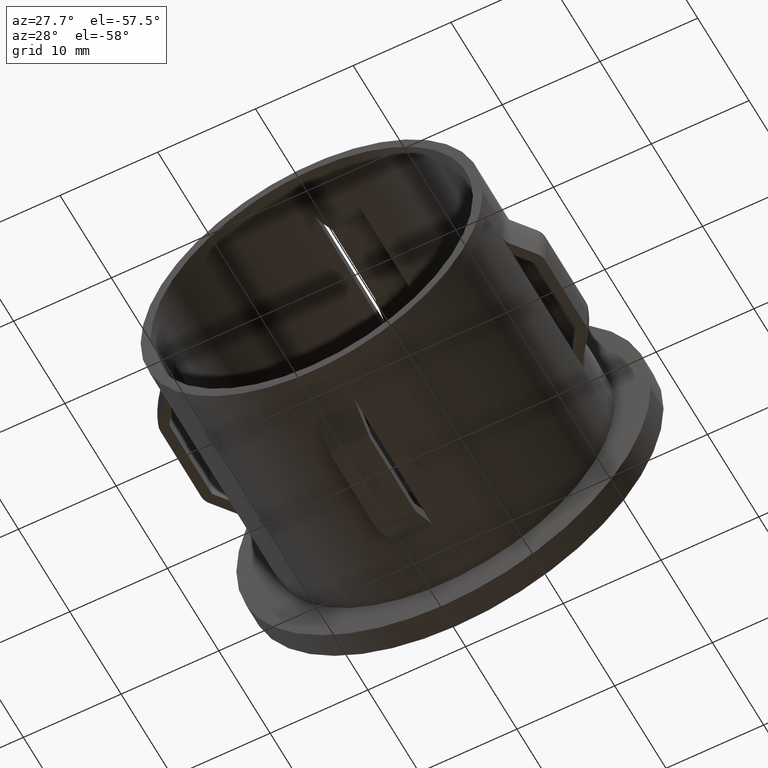
[diagram: clean part render]
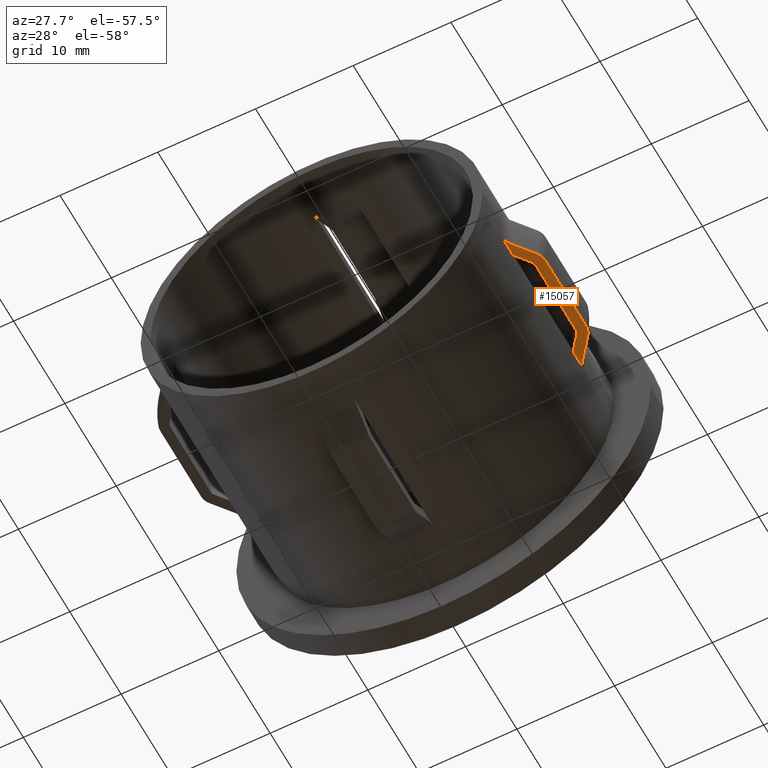
[diagram: same view with one face highlighted and labeled with its STEP entity id]
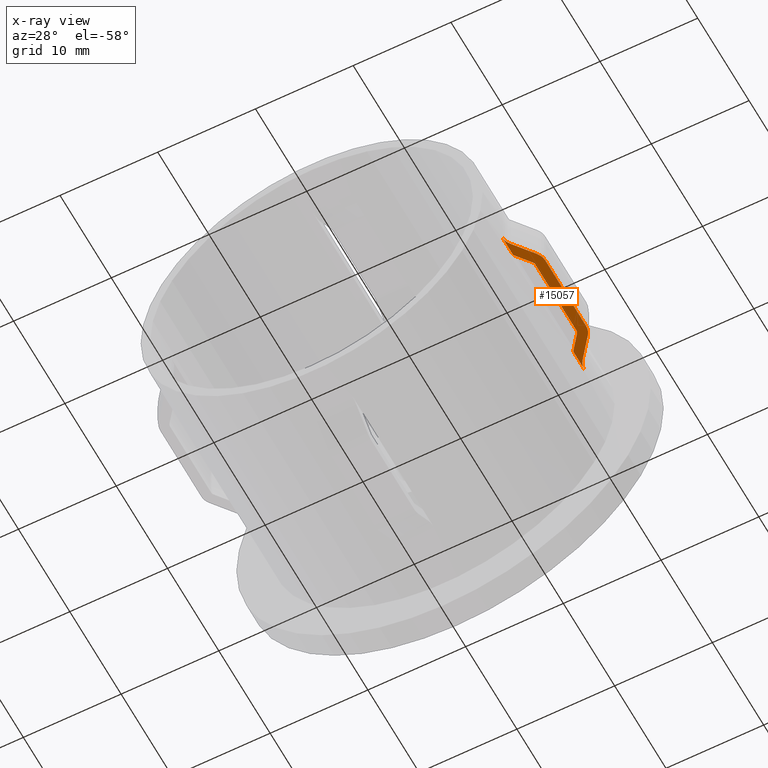
[diagram: x-ray of the same camera — body ghosted, the highlighted face saturated]
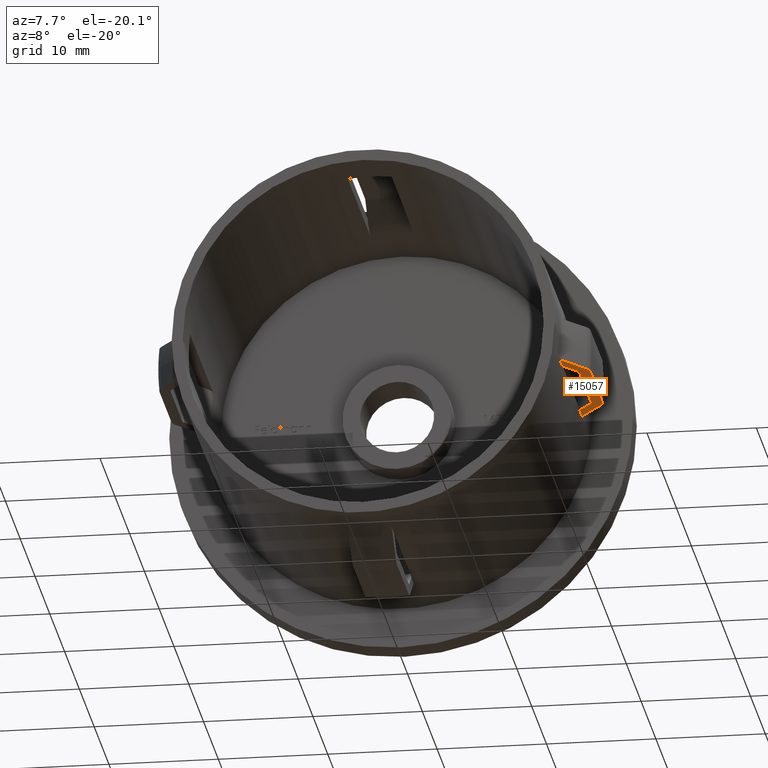
[diagram: same view with one face highlighted and labeled with its STEP entity id]
A machine part, auxiliary view. The second image highlights one B-rep face of the part: STEP entity #15057.
The next image is the same camera in x-ray: the body ghosted, the highlighted face saturated — about 0% of this face is hidden behind the body in this view.
A second angle (auxiliary view) of the same face is appended — the face is thin or edge-on in the first view.
In plain terms, the highlighted planar face has unit normal (-0, 0, -1).
Its self-contained STEP definition (entity closure, byte-faithful):
#112 = CARTESIAN_POINT ( 'NONE',  ( 19.25638913031340800, 17.08142934826649300, -2.000000000000000000 ) ) ;
#343 = CARTESIAN_POINT ( 'NONE',  ( 18.69331431287667700, 28.20000000000000300, -2.000000000000000000 ) ) ;
#440 = VECTOR ( 'NONE', #10838, 1000.000000000000000 ) ;
#556 = CARTESIAN_POINT ( 'NONE',  ( 17.38533865071371700, 20.00000000000000000, -2.000000000000000000 ) ) ;
#600 = CARTESIAN_POINT ( 'NONE',  ( 17.45777055170323800, 6.240436341341647300, -2.000000000000000000 ) ) ;
#666 = CARTESIAN_POINT ( 'NONE',  ( 18.62187473698392600, 7.737391989254852800, -2.000000000000000000 ) ) ;
#781 = CARTESIAN_POINT ( 'NONE',  ( 18.68406974042059300, 7.890042809425778200, -2.000000000000000000 ) ) ;
#863 = EDGE_CURVE ( 'NONE', #6844, #5928, #10163, .T. ) ;
#1088 = CARTESIAN_POINT ( 'NONE',  ( 19.69873092358997000, 15.99999999999999300, -2.000000000000000000 ) ) ;
#1095 = ORIENTED_EDGE ( 'NONE', *, *, #8516, .T. ) ;
#1288 = CARTESIAN_POINT ( 'NONE',  ( 17.41312422527077400, 4.330426929734375800, -2.000000000000000000 ) ) ;
#1383 = CARTESIAN_POINT ( 'NONE',  ( 19.38391828307801000, 7.082694103002714000, -2.000000000000000000 ) ) ;
#1471 = CARTESIAN_POINT ( 'NONE',  ( 19.69873092358998100, 7.836407959827564400, -2.000000000000000000 ) ) ;
#1497 = CARTESIAN_POINT ( 'NONE',  ( 17.41231722263728100, 19.67272579949924700, -2.000000000000000000 ) ) ;
#1621 = CARTESIAN_POINT ( 'NONE',  ( 19.38391828307801000, 7.082694103002714000, -2.000000000000000000 ) ) ;
#1732 = ORIENTED_EDGE ( 'NONE', *, *, #12738, .T. ) ;
#1765 = ORIENTED_EDGE ( 'NONE', *, *, #2864, .T. ) ;
#1950 = CARTESIAN_POINT ( 'NONE',  ( 18.69331431287668400, 16.00000000000000000, -2.000000000000000000 ) ) ;
#2010 = EDGE_CURVE ( 'NONE', #13743, #10760, #15531, .T. ) ;
#2065 = CARTESIAN_POINT ( 'NONE',  ( 18.58832299002213500, 16.30576863233242700, -2.000000000000000000 ) ) ;
#2515 = CARTESIAN_POINT ( 'NONE',  ( 17.70510967552677100, 17.44161250498658300, -2.000000000000000000 ) ) ;
#2566 = VERTEX_POINT ( 'NONE', #3169 ) ;
#2641 = CARTESIAN_POINT ( 'NONE',  ( 19.69873092358997000, 7.999999999999992900, -2.000000000000000000 ) ) ;
#2652 = CARTESIAN_POINT ( 'NONE',  ( 17.81191609988131600, 5.060495202477128800, -2.000000000000000000 ) ) ;
#2683 = VERTEX_POINT ( 'NONE', #13920 ) ;
#2864 = EDGE_CURVE ( 'NONE', #10760, #11992, #15368, .T. ) ;
#2972 = AXIS2_PLACEMENT_3D ( 'NONE', #8699, #13802, #4756 ) ;
#3118 = DIRECTION ( 'NONE',  ( -1.714505518806297100E-016, 1.000000000000000000, -0.0000000000000000000 ) ) ;
#3169 = CARTESIAN_POINT ( 'NONE',  ( 17.70054402987661700, 19.08269410300271600, -2.000000000000000000 ) ) ;
#3296 = CARTESIAN_POINT ( 'NONE',  ( 18.69331431287668400, 16.05532894865937300, -2.000000000000000000 ) ) ;
#3401 = EDGE_CURVE ( 'NONE', #15964, #3508, #9038, .T. ) ;
#3508 = VERTEX_POINT ( 'NONE', #11860 ) ;
#3619 = EDGE_CURVE ( 'NONE', #5928, #15964, #3784, .T. ) ;
#3693 = CARTESIAN_POINT ( 'NONE',  ( 18.58832299003000100, 7.694231367662705000, -2.000000000000000000 ) ) ;
#3705 = CARTESIAN_POINT ( 'NONE',  ( 17.38533865071371700, 17.85266306708251300, -2.000000000000000000 ) ) ;
#3784 = B_SPLINE_CURVE_WITH_KNOTS ( 'NONE', 3,
 ( #7198, #666, #8426, #781, #4656, #13646 ),
 .UNSPECIFIED., .F., .F.,
 ( 4, 2, 4 ),
 ( 0.001121410949493415300, 0.001285245636187003600, 0.001449080322880592200 ),
 .UNSPECIFIED. ) ;
#3794 = LINE ( 'NONE', #556, #9566 ) ;
#3836 = CARTESIAN_POINT ( 'NONE',  ( 19.69873092358997000, 15.99999999999999300, -2.000000000000000000 ) ) ;
#3848 = CARTESIAN_POINT ( 'NONE',  ( 17.70054402987662100, 4.917305896997282500, -2.000000000000000000 ) ) ;
#3871 = CARTESIAN_POINT ( 'NONE',  ( 17.70054402987661700, 19.08269410300271600, -2.000000000000000000 ) ) ;
#3872 = ORIENTED_EDGE ( 'NONE', *, *, #2010, .T. ) ;
#3915 = CARTESIAN_POINT ( 'NONE',  ( 17.51988713048691100, 19.35924031837562300, -2.000000000000000000 ) ) ;
#4164 = CARTESIAN_POINT ( 'NONE',  ( 18.58832299002213500, 16.30576863233242700, -2.000000000000000000 ) ) ;
#4290 = ORIENTED_EDGE ( 'NONE', *, *, #5590, .T. ) ;
#4656 = CARTESIAN_POINT ( 'NONE',  ( 18.69331431287669100, 7.945360792341523900, -2.000000000000000000 ) ) ;
#4756 = DIRECTION ( 'NONE',  ( -1.000000000000000000, 0.0000000000000000000, 9.801400357268895000E-017 ) ) ;
#4959 = CARTESIAN_POINT ( 'NONE',  ( 18.34724002446394700, 16.61589527519828700, -2.000000000000000000 ) ) ;
#5177 = CARTESIAN_POINT ( 'NONE',  ( 17.38533865071371700, 3.999999999999993300, -2.000000000000000000 ) ) ;
#5189 = CARTESIAN_POINT ( 'NONE',  ( 17.38533865071371700, 6.147336932917483000, -2.000000000000000000 ) ) ;
#5211 = CARTESIAN_POINT ( 'NONE',  ( 18.33608184474374500, 5.734433190431955700, -2.000000000000000000 ) ) ;
#5231 = CARTESIAN_POINT ( 'NONE',  ( 18.19805515410471100, 18.44307714435867500, -2.000000000000000000 ) ) ;
#5347 = CARTESIAN_POINT ( 'NONE',  ( 19.48510390493481700, 7.212918170659224700, -2.000000000000000000 ) ) ;
#5405 = CARTESIAN_POINT ( 'NONE',  ( 19.38391828307801000, 7.082694103002714000, -2.000000000000000000 ) ) ;
#5580 = VECTOR ( 'NONE', #3118, 1000.000000000000000 ) ;
#5590 = EDGE_CURVE ( 'NONE', #14900, #2683, #9707, .T. ) ;
#5773 = EDGE_CURVE ( 'NONE', #9895, #2683, #3794, .T. ) ;
#5928 = VERTEX_POINT ( 'NONE', #3693 ) ;
#5948 = EDGE_CURVE ( 'NONE', #9895, #2566, #8169, .T. ) ;
#6135 = DIRECTION ( 'NONE',  ( -0.0000000000000000000, -1.000000000000000000, -0.0000000000000000000 ) ) ;
#6148 = CARTESIAN_POINT ( 'NONE',  ( 18.10612365518475600, 16.92599595467671500, -2.000000000000000000 ) ) ;
#6234 = CARTESIAN_POINT ( 'NONE',  ( 19.38391828307859700, 16.91730589699767900, -2.000000000000000000 ) ) ;
#6274 = CARTESIAN_POINT ( 'NONE',  ( 19.56480000623317700, 16.63963747952877300, -2.000000000000000000 ) ) ;
#6370 = CARTESIAN_POINT ( 'NONE',  ( 19.32015473985730100, 16.99936842538836100, -2.000000000000000000 ) ) ;
#6381 = VERTEX_POINT ( 'NONE', #6234 ) ;
#6519 = CARTESIAN_POINT ( 'NONE',  ( 17.38533865071371700, 20.00000000000000000, -2.000000000000000000 ) ) ;
#6544 = CARTESIAN_POINT ( 'NONE',  ( 19.56370999303142400, 7.357906327296127800, -2.000000000000000000 ) ) ;
#6626 = CARTESIAN_POINT ( 'NONE',  ( 17.38533865071371000, 19.83459572259703700, -2.000000000000000000 ) ) ;
#6650 = CARTESIAN_POINT ( 'NONE',  ( 19.67134519996886900, 7.670841965050039200, -2.000000000000000000 ) ) ;
#6718 = EDGE_LOOP ( 'NONE', ( #9820, #8933, #10409, #1732, #12606, #3872, #1765, #12896, #9732, #12769, #16573, #1095, #4290, #8533 ) ) ;
#6844 = VERTEX_POINT ( 'NONE', #5189 ) ;
#6897 = CARTESIAN_POINT ( 'NONE',  ( 18.58832299003000100, 7.694231367662705000, -2.000000000000000000 ) ) ;
#7020 = CARTESIAN_POINT ( 'NONE',  ( 17.60262344035573900, 6.426643648481550600, -2.000000000000000000 ) ) ;
#7198 = CARTESIAN_POINT ( 'NONE',  ( 18.58832299003000100, 7.694231367662705000, -2.000000000000000000 ) ) ;
#7233 = CARTESIAN_POINT ( 'NONE',  ( 19.48453050991791000, 16.78781977837055800, -2.000000000000000000 ) ) ;
#7377 = CARTESIAN_POINT ( 'NONE',  ( 19.69873092358997000, 20.00000000000000000, -2.000000000000000000 ) ) ;
#7595 = CARTESIAN_POINT ( 'NONE',  ( 17.38533865071369500, 4.164051904856847800, -2.000000000000000000 ) ) ;
#7769 = CARTESIAN_POINT ( 'NONE',  ( 19.19262139241841700, 17.16348861717477100, -2.000000000000000000 ) ) ;
#8048 = LINE ( 'NONE', #7377, #11473 ) ;
#8169 = B_SPLINE_CURVE_WITH_KNOTS ( 'NONE', 3,
 ( #14201, #6626, #1497, #3915, #15584, #14101 ),
 .UNSPECIFIED., .F., .F.,
 ( 4, 2, 4 ),
 ( 0.008626215451687858600, 0.009116837854577831300, 0.009607460257467804000 ),
 .UNSPECIFIED. ) ;
#8426 = CARTESIAN_POINT ( 'NONE',  ( 18.64855506590777200, 7.786676380874464300, -2.000000000000000000 ) ) ;
#8443 = CARTESIAN_POINT ( 'NONE',  ( 17.38533865071371700, 20.00000000000000000, -2.000000000000000000 ) ) ;
#8516 = EDGE_CURVE ( 'NONE', #3508, #14900, #10020, .T. ) ;
#8533 = ORIENTED_EDGE ( 'NONE', *, *, #5773, .F. ) ;
#8699 = CARTESIAN_POINT ( 'NONE',  ( -1.960280071453777300E-016, 20.00000000000000000, -1.999999999999998200 ) ) ;
#8929 = CARTESIAN_POINT ( 'NONE',  ( 17.59919387373146200, 4.787006742918582500, -2.000000000000000000 ) ) ;
#8933 = ORIENTED_EDGE ( 'NONE', *, *, #11978, .T. ) ;
#8992 = CARTESIAN_POINT ( 'NONE',  ( 17.52062360093951200, 4.642093407317827500, -2.000000000000000000 ) ) ;
#9038 = LINE ( 'NONE', #343, #5580 ) ;
#9172 = CARTESIAN_POINT ( 'NONE',  ( 19.69873092358997000, 7.999999999999992900, -2.000000000000000000 ) ) ;
#9454 = DIRECTION ( 'NONE',  ( -0.0000000000000000000, -1.000000000000000000, -0.0000000000000000000 ) ) ;
#9543 = CARTESIAN_POINT ( 'NONE',  ( 17.53019877033859700, 6.333538614768047000, -2.000000000000000000 ) ) ;
#9564 = CARTESIAN_POINT ( 'NONE',  ( 18.62230641858763400, 16.26205269997824100, -2.000000000000000000 ) ) ;
#9566 = VECTOR ( 'NONE', #9454, 1000.000000000000000 ) ;
#9707 = B_SPLINE_CURVE_WITH_KNOTS ( 'NONE', 3,
 ( #13839, #4959, #6148, #12725, #2515, #10082, #3705 ),
 .UNSPECIFIED., .F., .F.,
 ( 4, 3, 4 ),
 ( 0.003766227339733347000, 0.004944656648864958700, 0.005725832751104421900 ),
 .UNSPECIFIED. ) ;
#9732 = ORIENTED_EDGE ( 'NONE', *, *, #863, .T. ) ;
#9820 = ORIENTED_EDGE ( 'NONE', *, *, #5948, .T. ) ;
#9830 = B_SPLINE_CURVE_WITH_KNOTS ( 'NONE', 3,
 ( #2641, #1471, #6650, #6544, #5347, #5405 ),
 .UNSPECIFIED., .F., .F.,
 ( 4, 2, 4 ),
 ( 0.008867984013301799500, 0.009358702014046670100, 0.009849420014791538900 ),
 .UNSPECIFIED. ) ;
#9895 = VERTEX_POINT ( 'NONE', #6519 ) ;
#9917 = PLANE ( 'NONE',  #2972 ) ;
#10020 = B_SPLINE_CURVE_WITH_KNOTS ( 'NONE', 3,
 ( #1950, #3296, #14760, #10896, #9564, #2065 ),
 .UNSPECIFIED., .F., .F.,
 ( 4, 2, 4 ),
 ( 0.001687266883629289500, 0.001851138705140686300, 0.002015010526652083300 ),
 .UNSPECIFIED. ) ;
#10082 = CARTESIAN_POINT ( 'NONE',  ( 17.54523313021142500, 17.64714476301812200, -2.000000000000000000 ) ) ;
#10163 = B_SPLINE_CURVE_WITH_KNOTS ( 'NONE', 3,
 ( #10762, #600, #9543, #7020, #16022, #15904, #6897 ),
 .UNSPECIFIED., .F., .F.,
 ( 4, 3, 4 ),
 ( 0.004590785931813228100, 0.004944657201370395100, 0.006550391138480412100 ),
 .UNSPECIFIED. ) ;
#10195 = CARTESIAN_POINT ( 'NONE',  ( 18.69331431287668000, 7.999999999999992900, -2.000000000000000000 ) ) ;
#10218 = CARTESIAN_POINT ( 'NONE',  ( 17.38533865071371700, 3.999999999999993300, -2.000000000000000000 ) ) ;
#10333 = CARTESIAN_POINT ( 'NONE',  ( 19.38391828307859700, 16.91730589699767900, -2.000000000000000000 ) ) ;
#10409 = ORIENTED_EDGE ( 'NONE', *, *, #11453, .T. ) ;
#10760 = VERTEX_POINT ( 'NONE', #11748 ) ;
#10762 = CARTESIAN_POINT ( 'NONE',  ( 17.38533865071371700, 6.147336932917483000, -2.000000000000000000 ) ) ;
#10838 = DIRECTION ( 'NONE',  ( -0.0000000000000000000, -1.000000000000000000, -0.0000000000000000000 ) ) ;
#10896 = CARTESIAN_POINT ( 'NONE',  ( 18.64831814402362700, 16.21401559492310400, -2.000000000000000000 ) ) ;
#11444 = VERTEX_POINT ( 'NONE', #1088 ) ;
#11453 = EDGE_CURVE ( 'NONE', #6381, #11444, #11592, .T. ) ;
#11473 = VECTOR ( 'NONE', #6135, 1000.000000000000000 ) ;
#11509 = CARTESIAN_POINT ( 'NONE',  ( 17.77479298253287300, 5.012764729325001100, -2.000000000000000000 ) ) ;
#11577 = EDGE_CURVE ( 'NONE', #16051, #13743, #9830, .T. ) ;
#11592 = B_SPLINE_CURVE_WITH_KNOTS ( 'NONE', 3,
 ( #14892, #7233, #6274, #14015, #12686, #3836 ),
 .UNSPECIFIED., .F., .F.,
 ( 4, 2, 4 ),
 ( 0.008967400865627922100, 0.009457634693453186700, 0.009947868521278451300 ),
 .UNSPECIFIED. ) ;
#11748 = CARTESIAN_POINT ( 'NONE',  ( 17.70054402987662100, 4.917305896997282500, -2.000000000000000000 ) ) ;
#11818 = EDGE_CURVE ( 'NONE', #6844, #11992, #13664, .T. ) ;
#11833 = FACE_OUTER_BOUND ( 'NONE', #6718, .T. ) ;
#11860 = CARTESIAN_POINT ( 'NONE',  ( 18.69331431287668400, 16.00000000000000000, -2.000000000000000000 ) ) ;
#11978 = EDGE_CURVE ( 'NONE', #2566, #6381, #12302, .T. ) ;
#11992 = VERTEX_POINT ( 'NONE', #5177 ) ;
#12302 = B_SPLINE_CURVE_WITH_KNOTS ( 'NONE', 3,
 ( #3871, #5231, #13996, #7769, #112, #6370, #10333 ),
 .UNSPECIFIED., .F., .F.,
 ( 4, 3, 4 ),
 ( 0.003036231863039283200, 0.005467207778810614100, 0.005778977572849276900 ),
 .UNSPECIFIED. ) ;
#12606 = ORIENTED_EDGE ( 'NONE', *, *, #11577, .T. ) ;
#12686 = CARTESIAN_POINT ( 'NONE',  ( 19.69873092358998100, 16.16507569451937300, -2.000000000000000000 ) ) ;
#12725 = CARTESIAN_POINT ( 'NONE',  ( 17.86496968364076200, 17.23606738661802900, -2.000000000000000000 ) ) ;
#12738 = EDGE_CURVE ( 'NONE', #11444, #16051, #8048, .T. ) ;
#12769 = ORIENTED_EDGE ( 'NONE', *, *, #3619, .T. ) ;
#12896 = ORIENTED_EDGE ( 'NONE', *, *, #11818, .F. ) ;
#13646 = CARTESIAN_POINT ( 'NONE',  ( 18.69331431287668000, 7.999999999999992900, -2.000000000000000000 ) ) ;
#13664 = LINE ( 'NONE', #8443, #440 ) ;
#13743 = VERTEX_POINT ( 'NONE', #1621 ) ;
#13802 = DIRECTION ( 'NONE',  ( -9.801400357268895000E-017, 0.0000000000000000000, -1.000000000000000000 ) ) ;
#13839 = CARTESIAN_POINT ( 'NONE',  ( 18.58832299002213500, 16.30576863233242700, -2.000000000000000000 ) ) ;
#13920 = CARTESIAN_POINT ( 'NONE',  ( 17.38533865071371700, 17.85266306708251300, -2.000000000000000000 ) ) ;
#13996 = CARTESIAN_POINT ( 'NONE',  ( 18.69540253257680700, 17.80333279971733500, -2.000000000000000000 ) ) ;
#14015 = CARTESIAN_POINT ( 'NONE',  ( 19.67162820651758500, 16.32761314581906500, -2.000000000000000000 ) ) ;
#14038 = CARTESIAN_POINT ( 'NONE',  ( 17.70054402987662100, 4.917305896997282500, -2.000000000000000000 ) ) ;
#14101 = CARTESIAN_POINT ( 'NONE',  ( 17.70054402987661700, 19.08269410300271600, -2.000000000000000000 ) ) ;
#14183 = CARTESIAN_POINT ( 'NONE',  ( 17.73766896485795300, 4.965034956401636300, -2.000000000000000000 ) ) ;
#14201 = CARTESIAN_POINT ( 'NONE',  ( 17.38533865071371700, 20.00000000000000000, -2.000000000000000000 ) ) ;
#14760 = CARTESIAN_POINT ( 'NONE',  ( 18.68431123515497200, 16.10925190506526800, -2.000000000000000000 ) ) ;
#14892 = CARTESIAN_POINT ( 'NONE',  ( 19.38391828307859700, 16.91730589699767900, -2.000000000000000000 ) ) ;
#14900 = VERTEX_POINT ( 'NONE', #4164 ) ;
#15057 = ADVANCED_FACE ( 'NONE', ( #11833 ), #9917, .T. ) ;
#15368 = B_SPLINE_CURVE_WITH_KNOTS ( 'NONE', 3,
 ( #14038, #8929, #8992, #1288, #7595, #10218 ),
 .UNSPECIFIED., .F., .F.,
 ( 4, 2, 4 ),
 ( 0.008546752705781151700, 0.009037083198378138100, 0.009527413690975124500 ),
 .UNSPECIFIED. ) ;
#15531 = B_SPLINE_CURVE_WITH_KNOTS ( 'NONE', 3,
 ( #1383, #16519, #5211, #2652, #11509, #14183, #3848 ),
 .UNSPECIFIED., .F., .F.,
 ( 4, 3, 4 ),
 ( 0.002905864393620519600, 0.005467207576081288500, 0.005648610190454627900 ),
 .UNSPECIFIED. ) ;
#15584 = CARTESIAN_POINT ( 'NONE',  ( 17.60008123349729600, 19.21185243765647100, -2.000000000000000000 ) ) ;
#15904 = CARTESIAN_POINT ( 'NONE',  ( 18.25982204971491300, 7.271651142806476300, -2.000000000000000000 ) ) ;
#15964 = VERTEX_POINT ( 'NONE', #10195 ) ;
#16022 = CARTESIAN_POINT ( 'NONE',  ( 17.93125917948827900, 6.849119050359864700, -2.000000000000000000 ) ) ;
#16051 = VERTEX_POINT ( 'NONE', #9172 ) ;
#16519 = CARTESIAN_POINT ( 'NONE',  ( 18.86006927298023300, 6.408509889070525200, -2.000000000000000000 ) ) ;
#16573 = ORIENTED_EDGE ( 'NONE', *, *, #3401, .T. ) ;